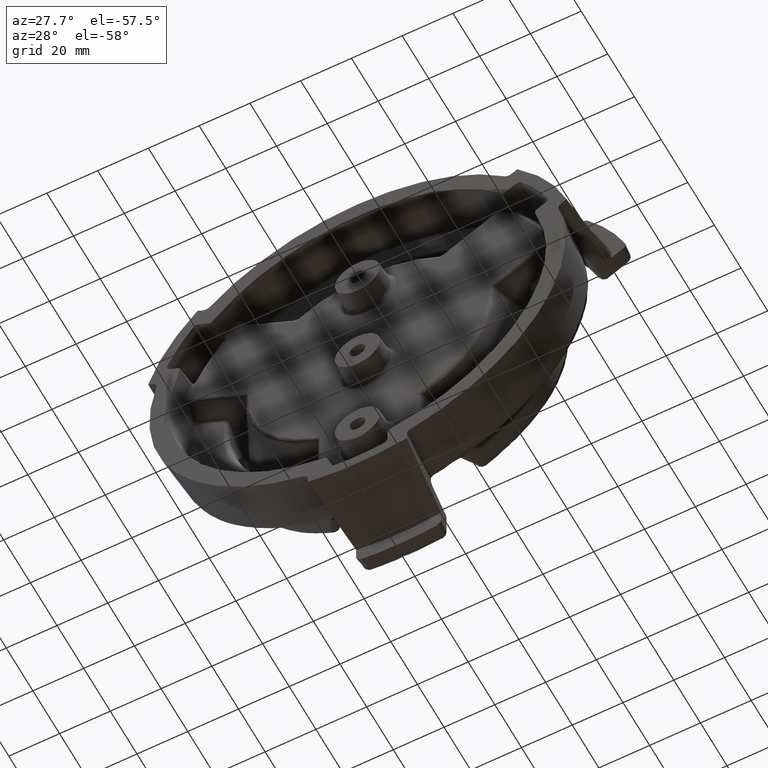
[diagram: clean part render]
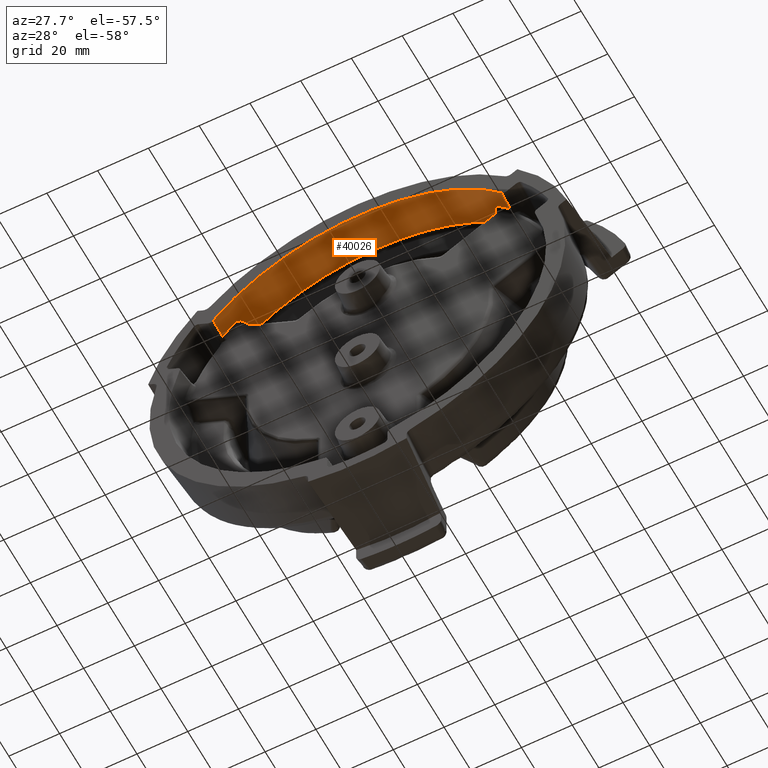
[diagram: same view with one face highlighted and labeled with its STEP entity id]
A machine part, auxiliary view. The second image highlights one B-rep face of the part: STEP entity #40026.
In plain terms, the highlighted conical surface has half-angle 5 deg.
Its self-contained STEP definition (entity closure, byte-faithful):
#8209 = CARTESIAN_POINT ( 'NONE',  ( 2.237734774380530000, -0.1250000000000000000, 1.889663972676290000 ) ) ;
#8211 = CARTESIAN_POINT ( 'NONE',  ( -2.237734773641281800, -0.1249999929956227100, 1.889663972821680000 ) ) ;
#8409 = CARTESIAN_POINT ( 'NONE',  ( 1.954511580496522700, 0.2201199594905468300, 2.140610624625102400 ) ) ;
#8460 = CARTESIAN_POINT ( 'NONE',  ( 2.047619108752835700, 0.1479472338905372100, 2.060638597310654200 ) ) ;
#8470 = CARTESIAN_POINT ( 'NONE',  ( -7.873735521696109300E-010, 0.4429472339865588900, 2.879182314846383800 ) ) ;
#8472 = CARTESIAN_POINT ( 'NONE',  ( -1.954511583860318000, 0.2201199516475000300, 2.140610622639386400 ) ) ;
#8476 = CARTESIAN_POINT ( 'NONE',  ( -2.047619110742815900, 0.1479472339114338600, 2.060638595365148300 ) ) ;
#12872 = CIRCLE ( 'NONE', #41965, 2.928871259000000600 ) ;
#18524 = CARTESIAN_POINT ( 'NONE',  ( 2.232048567410069900, 0.1479472338317375200, 1.859283366123135200 ) ) ;
#18541 = CARTESIAN_POINT ( 'NONE',  ( 2.233955975438595600, 0.05735088808857404000, 1.869377567320445800 ) ) ;
#18542 = CARTESIAN_POINT ( 'NONE',  ( 2.235851413603871900, -0.03363152318571555700, 1.879504456035623100 ) ) ;
#18543 = CARTESIAN_POINT ( 'NONE',  ( 2.237734774380530000, -0.1250000000000000000, 1.889663972676290000 ) ) ;
#18573 = CARTESIAN_POINT ( 'NONE',  ( -2.232048567278115400, 0.1479472338927312600, 1.859283366174471700 ) ) ;
#18581 = CARTESIAN_POINT ( 'NONE',  ( 0.0000000000000000000, -0.1250000000000000300, 0.0000000000000000000 ) ) ;
#18591 = CARTESIAN_POINT ( 'NONE',  ( -2.233964070875271700, 0.05696639584877426900, 1.869420406221643700 ) ) ;
#18592 = CARTESIAN_POINT ( 'NONE',  ( -2.235859339306504700, -0.03401602129749885200, 1.879547208666262100 ) ) ;
#18593 = CARTESIAN_POINT ( 'NONE',  ( -2.237734773641281800, -0.1249999929956227100, 1.889663972821680000 ) ) ;
#18595 = DIRECTION ( 'NONE',  ( 0.0000000000000000000, -1.000000000000000000, 0.0000000000000000000 ) ) ;
#18596 = DIRECTION ( 'NONE',  ( 0.0000000000000000000, 0.0000000000000000000, -1.000000000000000000 ) ) ;
#19360 = B_SPLINE_CURVE_WITH_KNOTS ( 'NONE', 3,
 ( #27177, #27208, #27209, #27210, #27211, #27212, #27213, #27214, #27215, #27216, #27217, #27218, #27219, #27220, #27221 ),
 .UNSPECIFIED., .F., .F.,
 ( 4, 2, 2, 2, 1, 2, 2, 4 ),
 ( 0.0000000000000000000, 0.2500000000000063800, 0.3750000000000074900, 0.5000000000000086600, 0.6250000000000097700, 0.6875000000000074400, 0.7500000000000051100, 1.000000000000000000 ),
 .UNSPECIFIED. ) ;
#19363 = B_SPLINE_CURVE_WITH_KNOTS ( 'NONE', 3,
 ( #27266, #27270, #27271, #27272 ),
 .UNSPECIFIED., .F., .F.,
 ( 4, 4 ),
 ( 0.0000000000000000000, 0.9999999069822324000 ),
 .UNSPECIFIED. ) ;
#19365 = B_SPLINE_CURVE_WITH_KNOTS ( 'NONE', 3,
 ( #27235, #27287, #27288, #27289 ),
 .UNSPECIFIED., .F., .F.,
 ( 4, 4 ),
 ( 0.0000000000000000000, 1.000000000000000000 ),
 .UNSPECIFIED. ) ;
#23070 = CARTESIAN_POINT ( 'NONE',  ( 1.954511580496522700, 0.2201199594905468300, 2.140610624625102400 ) ) ;
#23079 = CARTESIAN_POINT ( 'NONE',  ( 1.956974154354324400, 0.2146378323492545100, 2.139011616795080800 ) ) ;
#23080 = CARTESIAN_POINT ( 'NONE',  ( 1.959701910303963500, 0.2093922298127656500, 2.137136681436465000 ) ) ;
#23081 = CARTESIAN_POINT ( 'NONE',  ( 1.964187737966476900, 0.2018786001359374700, 2.133905775620007300 ) ) ;
#23082 = CARTESIAN_POINT ( 'NONE',  ( 1.965748701850752200, 0.1994331859316456300, 2.132759047417319500 ) ) ;
#23083 = CARTESIAN_POINT ( 'NONE',  ( 1.969001275467080900, 0.1946606155656971400, 2.130325195146030500 ) ) ;
#23084 = CARTESIAN_POINT ( 'NONE',  ( 1.970725745974696700, 0.1922910295188219600, 2.129012669619633900 ) ) ;
#23085 = CARTESIAN_POINT ( 'NONE',  ( 1.975896732540525000, 0.1856142377534593400, 2.125015485523833000 ) ) ;
#23086 = CARTESIAN_POINT ( 'NONE',  ( 1.979523724956552000, 0.1814823101781843400, 2.122132825106052900 ) ) ;
#23087 = CARTESIAN_POINT ( 'NONE',  ( 1.987131390765679600, 0.1738569888975675900, 2.115926104657184700 ) ) ;
#23088 = CARTESIAN_POINT ( 'NONE',  ( 1.991152622770925300, 0.1703326061158133000, 2.112567406267857400 ) ) ;
#23089 = CARTESIAN_POINT ( 'NONE',  ( 2.003493718656584700, 0.1609031930339257800, 2.102027781217386000 ) ) ;
#23090 = CARTESIAN_POINT ( 'NONE',  ( 2.012079030190125000, 0.1561212751219363500, 2.094398674876075500 ) ) ;
#23091 = CARTESIAN_POINT ( 'NONE',  ( 2.029881948910544900, 0.1495824522836310700, 2.077948591563375300 ) ) ;
#23092 = CARTESIAN_POINT ( 'NONE',  ( 2.038764631220048700, 0.1479475756569926800, 2.069437088611959700 ) ) ;
#23093 = CARTESIAN_POINT ( 'NONE',  ( 2.047619108752835700, 0.1479472338905372100, 2.060638597310654200 ) ) ;
#24670 = EDGE_CURVE ( 'NONE', #37267, #42876, #29686, .T. ) ;
#24681 = EDGE_CURVE ( 'NONE', #37580, #42877, #29695, .T. ) ;
#24682 = EDGE_CURVE ( 'NONE', #42876, #42877, #12872, .T. ) ;
#25502 = EDGE_CURVE ( 'NONE', #42993, #43024, #29826, .T. ) ;
#26887 = CARTESIAN_POINT ( 'NONE',  ( 0.0000000000000000000, 0.1479472338228665600, 0.0000000000000000000 ) ) ;
#26888 = DIRECTION ( 'NONE',  ( -0.0000000000000000000, 1.000000000000000000, -0.0000000000000000000 ) ) ;
#26889 = DIRECTION ( 'NONE',  ( 0.0000000000000000000, 7.523183517441023000E-016, -1.000000000000000000 ) ) ;
#27177 = CARTESIAN_POINT ( 'NONE',  ( -2.047619110742815900, 0.1479472339114338600, 2.060638595365148300 ) ) ;
#27208 = CARTESIAN_POINT ( 'NONE',  ( -2.038734092454161000, 0.1479475777318690900, 2.069467434169288500 ) ) ;
#27209 = CARTESIAN_POINT ( 'NONE',  ( -2.029795384944573600, 0.1496030723511804500, 2.078030670870534300 ) ) ;
#27210 = CARTESIAN_POINT ( 'NONE',  ( -2.016433460975905600, 0.1545276140194046500, 2.090374072091993000 ) ) ;
#27211 = CARTESIAN_POINT ( 'NONE',  ( -2.012062094199683000, 0.1565461386450172100, 2.094336196817114800 ) ) ;
#27212 = CARTESIAN_POINT ( 'NONE',  ( -2.003489653840985900, 0.1613372093686514200, 2.101959241208541900 ) ) ;
#27213 = CARTESIAN_POINT ( 'NONE',  ( -1.999323836290507900, 0.1640827615928460200, 2.105590060852231100 ) ) ;
#27214 = CARTESIAN_POINT ( 'NONE',  ( -1.991026174933699000, 0.1704358630089522500, 2.112674282917664100 ) ) ;
#27215 = CARTESIAN_POINT ( 'NONE',  ( -1.985062543645378400, 0.1756795294588993400, 2.117652612048770000 ) ) ;
#27216 = CARTESIAN_POINT ( 'NONE',  ( -1.979495629420942700, 0.1816414564906478600, 2.122135593304453700 ) ) ;
#27217 = CARTESIAN_POINT ( 'NONE',  ( -1.975873222332187100, 0.1857756879744360000, 2.125014878629441800 ) ) ;
#27218 = CARTESIAN_POINT ( 'NONE',  ( -1.974133810511201400, 0.1878872402253437300, 2.126378703349834300 ) ) ;
#27219 = CARTESIAN_POINT ( 'NONE',  ( -1.965387113726244200, 0.1991977373594143500, 2.133137499499354800 ) ) ;
#27220 = CARTESIAN_POINT ( 'NONE',  ( -1.959422243065074700, 0.2091879411323661900, 2.137422015342065300 ) ) ;
#27221 = CARTESIAN_POINT ( 'NONE',  ( -1.954511583860318000, 0.2201199516475000300, 2.140610622639386400 ) ) ;
#27222 = CARTESIAN_POINT ( 'NONE',  ( 0.0000000000000000000, 0.4429472339999984700, 0.0000000000000000000 ) ) ;
#27233 = DIRECTION ( 'NONE',  ( -0.0000000000000000000, 1.000000000000000000, -0.0000000000000000000 ) ) ;
#27234 = DIRECTION ( 'NONE',  ( 0.0000000000000000000, 5.455759394510421700E-016, -1.000000000000000000 ) ) ;
#27235 = CARTESIAN_POINT ( 'NONE',  ( -1.954511583860318000, 0.2201199516475000300, 2.140610622639386400 ) ) ;
#27266 = CARTESIAN_POINT ( 'NONE',  ( 1.852200426596460000, 0.4429472341625294600, 2.204324018768372400 ) ) ;
#27270 = CARTESIAN_POINT ( 'NONE',  ( 1.886405117802825200, 0.3700736135121826000, 2.183910784554359700 ) ) ;
#27271 = CARTESIAN_POINT ( 'NONE',  ( 1.920521446214353200, 0.2957978595419092400, 2.162680070873222300 ) ) ;
#27272 = CARTESIAN_POINT ( 'NONE',  ( 1.954511580496522700, 0.2201199594905468300, 2.140610624625102400 ) ) ;
#27273 = CARTESIAN_POINT ( 'NONE',  ( 0.0000000000000000000, 0.4429472339999984700, 0.0000000000000000000 ) ) ;
#27274 = DIRECTION ( 'NONE',  ( -0.0000000000000000000, 1.000000000000000000, -0.0000000000000000000 ) ) ;
#27275 = DIRECTION ( 'NONE',  ( 1.776356839400250500E-015, 5.455759394510421700E-016, -1.000000000000000000 ) ) ;
#27287 = CARTESIAN_POINT ( 'NONE',  ( -1.920521452172854400, 0.2957978457239783300, 2.162680067268436100 ) ) ;
#27288 = CARTESIAN_POINT ( 'NONE',  ( -1.886405120592268700, 0.3700736067336404800, 2.183910782994338300 ) ) ;
#27289 = CARTESIAN_POINT ( 'NONE',  ( -1.852200426707274300, 0.4429472339198897700, 2.204324018971335300 ) ) ;
#27299 = CARTESIAN_POINT ( 'NONE',  ( 0.0000000000000000000, 0.1479472338228665600, 0.0000000000000000000 ) ) ;
#27300 = DIRECTION ( 'NONE',  ( -0.0000000000000000000, 1.000000000000000000, -0.0000000000000000000 ) ) ;
#27301 = DIRECTION ( 'NONE',  ( 1.865174681370263300E-014, 7.523183517441023000E-016, -1.000000000000000000 ) ) ;
#28699 = AXIS2_PLACEMENT_3D ( 'NONE', #47810, #47798, #47799 ) ;
#28891 = CIRCLE ( 'NONE', #42383, 2.904991470518841100 ) ;
#29020 = CIRCLE ( 'NONE', #42378, 2.879182315000000000 ) ;
#29246 = CIRCLE ( 'NONE', #42354, 2.879182315000000000 ) ;
#29439 = CIRCLE ( 'NONE', #42364, 2.904991470518841100 ) ;
#29686 = B_SPLINE_CURVE_WITH_KNOTS ( 'NONE', 3,
 ( #18524, #18541, #18542, #18543 ),
 .UNSPECIFIED., .F., .F.,
 ( 4, 4 ),
 ( 0.0000000000000000000, 1.000000000000000000 ),
 .UNSPECIFIED. ) ;
#29695 = B_SPLINE_CURVE_WITH_KNOTS ( 'NONE', 3,
 ( #18573, #18591, #18592, #18593 ),
 .UNSPECIFIED., .F., .F.,
 ( 4, 4 ),
 ( 0.0000000000000000000, 1.000000000000000000 ),
 .UNSPECIFIED. ) ;
#29826 = B_SPLINE_CURVE_WITH_KNOTS ( 'NONE', 3,
 ( #23070, #23079, #23080, #23081, #23082, #23083, #23084, #23085, #23086, #23087, #23088, #23089, #23090, #23091, #23092, #23093 ),
 .UNSPECIFIED., .F., .F.,
 ( 4, 2, 2, 2, 2, 2, 2, 4 ),
 ( 0.0000000000000000000, 0.1249999999999956400, 0.1874999999999943900, 0.2499999999999931700, 0.3749999999999932300, 0.4999999999999933400, 0.7499999999999965600, 1.000000000000000000 ),
 .UNSPECIFIED. ) ;
#30013 = EDGE_CURVE ( 'NONE', #37580, #43033, #29439, .T. ) ;
#30026 = EDGE_CURVE ( 'NONE', #43033, #43031, #19360, .T. ) ;
#30028 = EDGE_CURVE ( 'NONE', #37249, #43030, #29246, .T. ) ;
#30031 = EDGE_CURVE ( 'NONE', #37258, #42993, #19363, .T. ) ;
#30032 = EDGE_CURVE ( 'NONE', #43030, #37258, #29020, .T. ) ;
#30034 = EDGE_CURVE ( 'NONE', #43031, #37249, #19365, .T. ) ;
#30037 = EDGE_CURVE ( 'NONE', #43024, #37267, #28891, .T. ) ;
#35751 = FACE_OUTER_BOUND ( 'NONE', #38565, .T. ) ;
#35916 = CONICAL_SURFACE ( 'NONE', #28699, 2.879182315000000000, 0.08726646180309086100 ) ;
#36967 = ORIENTED_EDGE ( 'NONE', *, *, #25502, .T. ) ;
#37249 = VERTEX_POINT ( 'NONE', #41181 ) ;
#37258 = VERTEX_POINT ( 'NONE', #41206 ) ;
#37267 = VERTEX_POINT ( 'NONE', #41201 ) ;
#37580 = VERTEX_POINT ( 'NONE', #41532 ) ;
#38227 = ORIENTED_EDGE ( 'NONE', *, *, #30034, .T. ) ;
#38229 = ORIENTED_EDGE ( 'NONE', *, *, #30013, .T. ) ;
#38238 = ORIENTED_EDGE ( 'NONE', *, *, #30037, .T. ) ;
#38240 = ORIENTED_EDGE ( 'NONE', *, *, #24670, .T. ) ;
#38565 = EDGE_LOOP ( 'NONE', ( #38238, #38240, #38755, #38671, #38229, #38633, #38227, #38750, #38788, #38895, #36967 ) ) ;
#38633 = ORIENTED_EDGE ( 'NONE', *, *, #30026, .T. ) ;
#38671 = ORIENTED_EDGE ( 'NONE', *, *, #24681, .F. ) ;
#38750 = ORIENTED_EDGE ( 'NONE', *, *, #30028, .T. ) ;
#38755 = ORIENTED_EDGE ( 'NONE', *, *, #24682, .T. ) ;
#38788 = ORIENTED_EDGE ( 'NONE', *, *, #30032, .T. ) ;
#38895 = ORIENTED_EDGE ( 'NONE', *, *, #30031, .T. ) ;
#40026 = ADVANCED_FACE ( 'NONE', ( #35751 ), #35916, .F. ) ;
#41181 = CARTESIAN_POINT ( 'NONE',  ( -1.852200426707274300, 0.4429472339198897700, 2.204324018971335300 ) ) ;
#41201 = CARTESIAN_POINT ( 'NONE',  ( 2.232048567410069900, 0.1479472338317375200, 1.859283366123135200 ) ) ;
#41206 = CARTESIAN_POINT ( 'NONE',  ( 1.852200426596460000, 0.4429472341625294600, 2.204324018768372400 ) ) ;
#41532 = CARTESIAN_POINT ( 'NONE',  ( -2.232048567278115400, 0.1479472338927312600, 1.859283366174471700 ) ) ;
#41965 = AXIS2_PLACEMENT_3D ( 'NONE', #18581, #18595, #18596 ) ;
#42354 = AXIS2_PLACEMENT_3D ( 'NONE', #27222, #27233, #27234 ) ;
#42364 = AXIS2_PLACEMENT_3D ( 'NONE', #26887, #26888, #26889 ) ;
#42378 = AXIS2_PLACEMENT_3D ( 'NONE', #27273, #27274, #27275 ) ;
#42383 = AXIS2_PLACEMENT_3D ( 'NONE', #27299, #27300, #27301 ) ;
#42876 = VERTEX_POINT ( 'NONE', #8209 ) ;
#42877 = VERTEX_POINT ( 'NONE', #8211 ) ;
#42993 = VERTEX_POINT ( 'NONE', #8409 ) ;
#43024 = VERTEX_POINT ( 'NONE', #8460 ) ;
#43030 = VERTEX_POINT ( 'NONE', #8470 ) ;
#43031 = VERTEX_POINT ( 'NONE', #8472 ) ;
#43033 = VERTEX_POINT ( 'NONE', #8476 ) ;
#47798 = DIRECTION ( 'NONE',  ( 0.0000000000000000000, -1.000000000000000000, 0.0000000000000000000 ) ) ;
#47799 = DIRECTION ( 'NONE',  ( 0.0000000000000000000, 0.0000000000000000000, -1.000000000000000000 ) ) ;
#47810 = CARTESIAN_POINT ( 'NONE',  ( 0.0000000000000000000, 0.4429472340000000800, 0.0000000000000000000 ) ) ;